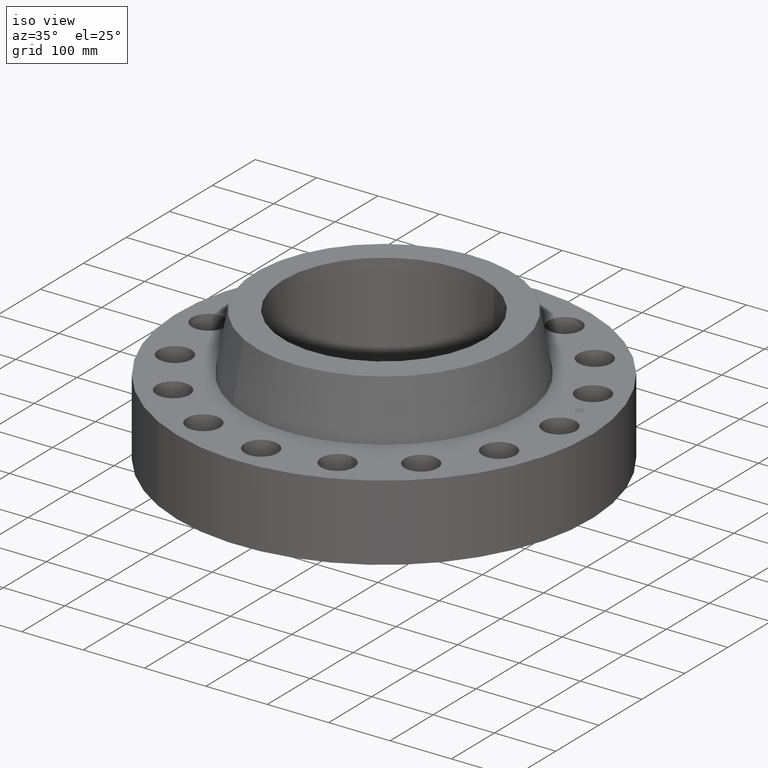
[diagram: clean part render]
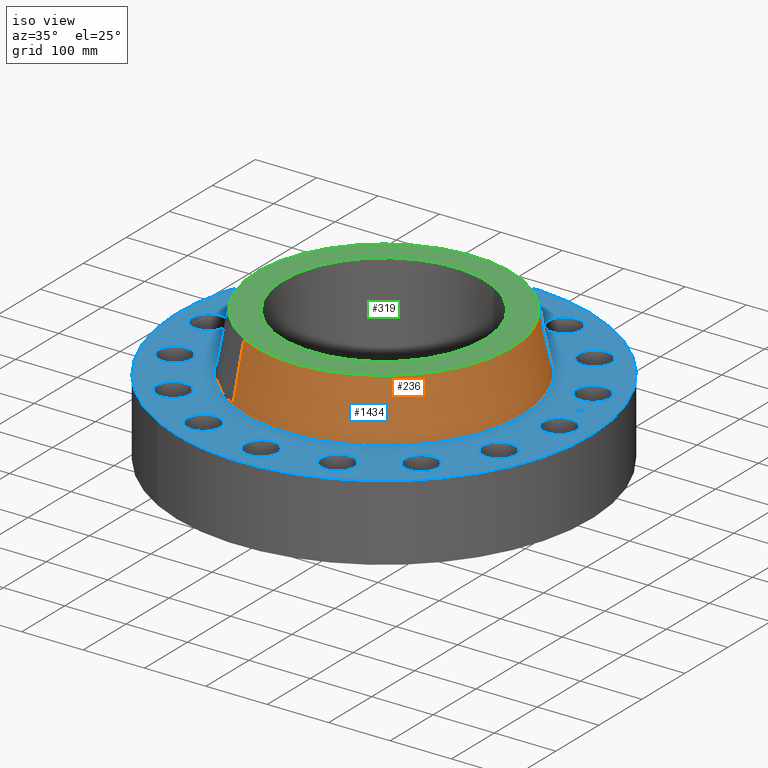
[diagram: same view with three faces highlighted in distinct colors, each labeled with its STEP entity id]
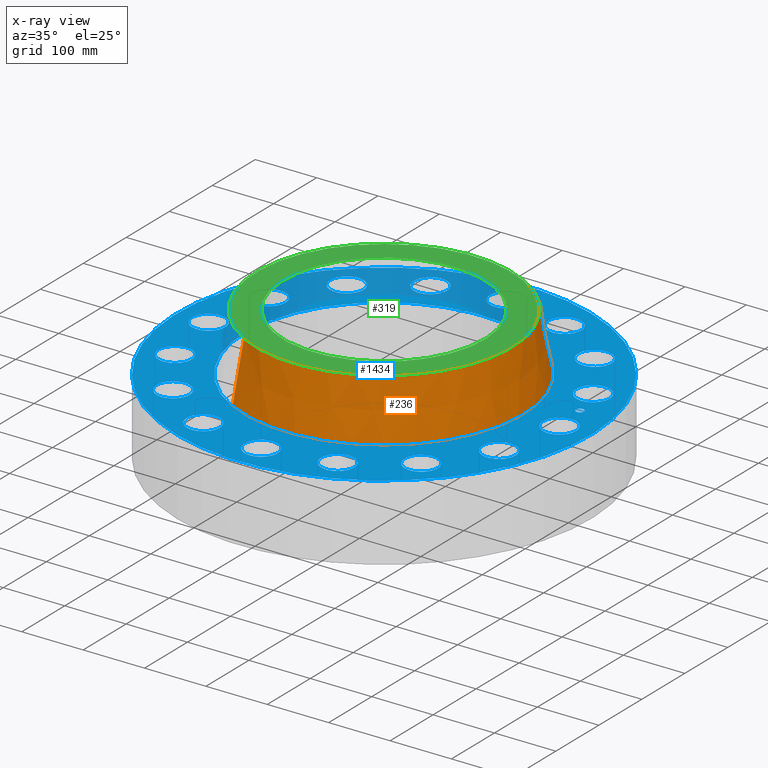
[diagram: x-ray of the same camera — body ghosted, the three highlighted faces saturated]
A machine part, iso view with three faces highlighted in distinct colors.
The next image is the same camera in x-ray (body ghosted, the three faces saturated) — at least one of them is partly hidden behind the body in this view.
Their STEP definitions:

[orange] entity #236 — the highlighted conical surface has half-angle 10 deg.
#172=AXIS2_PLACEMENT_3D('Circle Axis2P3D',#170,#171,$) ;
#209=AXIS2_PLACEMENT_3D('Cone Axis2P3D',#206,#207,#208) ;
#220=AXIS2_PLACEMENT_3D('Circle Axis2P3D',#218,#219,$) ;
#167=CARTESIAN_POINT('Vertex',(4.25071028344,7.7808729824,4.92958110936)) ;
#170=CARTESIAN_POINT('Axis2P3D Location',(0.,0.,4.92958110936)) ;
#174=CARTESIAN_POINT('Vertex',(-4.25071028344,-7.7808729824,4.92958110936)) ;
#206=CARTESIAN_POINT('Axis2P3D Location',(0.,0.,8.57041889069)) ;
#211=CARTESIAN_POINT('Line Origine',(4.09681997524,7.49917866274,6.75000000003)) ;
#215=CARTESIAN_POINT('Vertex',(3.94292966703,7.21748434307,8.57041889069)) ;
#218=CARTESIAN_POINT('Axis2P3D Location',(0.,0.,8.57041889069)) ;
#222=CARTESIAN_POINT('Vertex',(-3.94292966703,-7.21748434307,8.57041889069)) ;
#225=CARTESIAN_POINT('Line Origine',(-4.09681997524,-7.49917866274,6.75000000003)) ;
#171=DIRECTION('Axis2P3D Direction',(0.,0.,-0.0393700787402)) ;
#207=DIRECTION('Axis2P3D Direction',(0.,0.,-0.0393700787402)) ;
#208=DIRECTION('Axis2P3D XDirection',(-0.0188750212049,-0.0345504945626,0.)) ;
#212=DIRECTION('Vector Direction',(0.00327761303565,0.00599963041829,-0.03877195878)) ;
#219=DIRECTION('Axis2P3D Direction',(0.,0.,-0.0393700787402)) ;
#226=DIRECTION('Vector Direction',(-0.00327761303565,-0.00599963041829,-0.03877195878)) ;
#213=VECTOR('Line Direction',#212,0.0393700787402) ;
#227=VECTOR('Line Direction',#226,0.0393700787402) ;
#231=ORIENTED_EDGE('',*,*,#176,.F.) ;
#232=ORIENTED_EDGE('',*,*,#217,.T.) ;
#233=ORIENTED_EDGE('',*,*,#224,.T.) ;
#234=ORIENTED_EDGE('',*,*,#229,.F.) ;
#236=ADVANCED_FACE('PartBody',(#235),#210,.T.) ;
#173=CIRCLE('generated circle',#172,8.86625751273) ;
#221=CIRCLE('generated circle',#220,8.22427957949) ;
#210=CONICAL_SURFACE('Cone',#209,8.22427957949,0.174532925199) ;
#176=EDGE_CURVE('',#168,#175,#173,.T.) ;
#217=EDGE_CURVE('',#168,#216,#214,.F.) ;
#224=EDGE_CURVE('',#216,#223,#221,.T.) ;
#229=EDGE_CURVE('',#175,#223,#228,.F.) ;
#230=EDGE_LOOP('',(#231,#232,#233,#234)) ;
#235=FACE_OUTER_BOUND('',#230,.T.) ;
#214=LINE('Line',#211,#213) ;
#228=LINE('Line',#225,#227) ;
#168=VERTEX_POINT('',#167) ;
#175=VERTEX_POINT('',#174) ;
#216=VERTEX_POINT('',#215) ;
#223=VERTEX_POINT('',#222) ;

[blue] entity #1434 — the highlighted planar face has unit normal (0, 0, -1).
#65=AXIS2_PLACEMENT_3D('Circle Axis2P3D',#63,#64,$) ;
#82=AXIS2_PLACEMENT_3D('Circle Axis2P3D',#80,#81,$) ;
#115=AXIS2_PLACEMENT_3D('Circle Axis2P3D',#113,#114,$) ;
#139=AXIS2_PLACEMENT_3D('Circle Axis2P3D',#137,#138,$) ;
#156=AXIS2_PLACEMENT_3D('Circle Axis2P3D',#154,#155,$) ;
#191=AXIS2_PLACEMENT_3D('Circle Axis2P3D',#189,#190,$) ;
#715=AXIS2_PLACEMENT_3D('Circle Axis2P3D',#713,#714,$) ;
#727=AXIS2_PLACEMENT_3D('Circle Axis2P3D',#725,#726,$) ;
#758=AXIS2_PLACEMENT_3D('Circle Axis2P3D',#756,#757,$) ;
#770=AXIS2_PLACEMENT_3D('Circle Axis2P3D',#768,#769,$) ;
#801=AXIS2_PLACEMENT_3D('Circle Axis2P3D',#799,#800,$) ;
#813=AXIS2_PLACEMENT_3D('Circle Axis2P3D',#811,#812,$) ;
#844=AXIS2_PLACEMENT_3D('Circle Axis2P3D',#842,#843,$) ;
#856=AXIS2_PLACEMENT_3D('Circle Axis2P3D',#854,#855,$) ;
#887=AXIS2_PLACEMENT_3D('Circle Axis2P3D',#885,#886,$) ;
#899=AXIS2_PLACEMENT_3D('Circle Axis2P3D',#897,#898,$) ;
#930=AXIS2_PLACEMENT_3D('Circle Axis2P3D',#928,#929,$) ;
#942=AXIS2_PLACEMENT_3D('Circle Axis2P3D',#940,#941,$) ;
#973=AXIS2_PLACEMENT_3D('Circle Axis2P3D',#971,#972,$) ;
#985=AXIS2_PLACEMENT_3D('Circle Axis2P3D',#983,#984,$) ;
#1016=AXIS2_PLACEMENT_3D('Circle Axis2P3D',#1014,#1015,$) ;
#1028=AXIS2_PLACEMENT_3D('Circle Axis2P3D',#1026,#1027,$) ;
#1059=AXIS2_PLACEMENT_3D('Circle Axis2P3D',#1057,#1058,$) ;
#1071=AXIS2_PLACEMENT_3D('Circle Axis2P3D',#1069,#1070,$) ;
#1102=AXIS2_PLACEMENT_3D('Circle Axis2P3D',#1100,#1101,$) ;
#1114=AXIS2_PLACEMENT_3D('Circle Axis2P3D',#1112,#1113,$) ;
#1145=AXIS2_PLACEMENT_3D('Circle Axis2P3D',#1143,#1144,$) ;
#1157=AXIS2_PLACEMENT_3D('Circle Axis2P3D',#1155,#1156,$) ;
#1188=AXIS2_PLACEMENT_3D('Circle Axis2P3D',#1186,#1187,$) ;
#1200=AXIS2_PLACEMENT_3D('Circle Axis2P3D',#1198,#1199,$) ;
#1231=AXIS2_PLACEMENT_3D('Circle Axis2P3D',#1229,#1230,$) ;
#1243=AXIS2_PLACEMENT_3D('Circle Axis2P3D',#1241,#1242,$) ;
#1274=AXIS2_PLACEMENT_3D('Circle Axis2P3D',#1272,#1273,$) ;
#1286=AXIS2_PLACEMENT_3D('Circle Axis2P3D',#1284,#1285,$) ;
#1317=AXIS2_PLACEMENT_3D('Circle Axis2P3D',#1315,#1316,$) ;
#1329=AXIS2_PLACEMENT_3D('Circle Axis2P3D',#1327,#1328,$) ;
#1342=AXIS2_PLACEMENT_3D('Plane Axis2P3D',#1339,#1340,#1341) ;
#1418=AXIS2_PLACEMENT_3D('Circle Axis2P3D',#1416,#1417,$) ;
#1427=AXIS2_PLACEMENT_3D('Circle Axis2P3D',#1425,#1426,$) ;
#46=CARTESIAN_POINT('Vertex',(10.3197624844,0.508191070922,4.88000000002)) ;
#60=CARTESIAN_POINT('Vertex',(12.1802375157,-0.508191070922,4.88000000002)) ;
#63=CARTESIAN_POINT('Axis2P3D Location',(11.25,0.,4.88000000002)) ;
#80=CARTESIAN_POINT('Axis2P3D Location',(11.25,0.,4.88000000002)) ;
#110=CARTESIAN_POINT('Vertex',(-6.35238838653,-11.6279689451,4.88000000002)) ;
#113=CARTESIAN_POINT('Axis2P3D Location',(0.,0.,4.88000000002)) ;
#117=CARTESIAN_POINT('Vertex',(6.35238838653,11.6279689451,4.88000000002)) ;
#137=CARTESIAN_POINT('Axis2P3D Location',(0.,0.,4.88000000002)) ;
#154=CARTESIAN_POINT('Axis2P3D Location',(0.,0.,4.88000000002)) ;
#158=CARTESIAN_POINT('Vertex',(4.27903880269,7.83272798905,4.88000000002)) ;
#160=CARTESIAN_POINT('Vertex',(-4.27903880269,-7.83272798905,4.88000000002)) ;
#189=CARTESIAN_POINT('Axis2P3D Location',(0.,0.,4.88000000002)) ;
#703=CARTESIAN_POINT('Vertex',(-9.72869364307,3.47969479971,4.88000000002)) ;
#710=CARTESIAN_POINT('Vertex',(-11.0585958385,5.13068242854,4.88000000002)) ;
#713=CARTESIAN_POINT('Axis2P3D Location',(-10.3936447408,4.30518861412,4.88000000002)) ;
#725=CARTESIAN_POINT('Axis2P3D Location',(-10.3936447408,4.30518861412,4.88000000002)) ;
#746=CARTESIAN_POINT('Vertex',(7.65651938537,-6.93782868059,4.88000000002)) ;
#753=CARTESIAN_POINT('Vertex',(8.25338319139,-8.97207389617,4.88000000002)) ;
#756=CARTESIAN_POINT('Axis2P3D Location',(7.95495128838,-7.95495128838,4.88000000002)) ;
#768=CARTESIAN_POINT('Axis2P3D Location',(7.95495128838,-7.95495128838,4.88000000002)) ;
#789=CARTESIAN_POINT('Vertex',(-7.65651938537,6.93782868059,4.88000000002)) ;
#796=CARTESIAN_POINT('Vertex',(-8.25338319139,8.97207389617,4.88000000002)) ;
#799=CARTESIAN_POINT('Axis2P3D Location',(-7.95495128838,7.95495128838,4.88000000002)) ;
#811=CARTESIAN_POINT('Axis2P3D Location',(-7.95495128838,7.95495128838,4.88000000002)) ;
#832=CARTESIAN_POINT('Vertex',(4.41870945777,-9.33974103643,4.88000000002)) ;
#839=CARTESIAN_POINT('Vertex',(4.19166777048,-11.4475484452,4.88000000002)) ;
#842=CARTESIAN_POINT('Axis2P3D Location',(4.30518861412,-10.3936447408,4.88000000002)) ;
#854=CARTESIAN_POINT('Axis2P3D Location',(4.30518861412,-10.3936447408,4.88000000002)) ;
#875=CARTESIAN_POINT('Vertex',(-4.41870945777,9.33974103643,4.88000000002)) ;
#882=CARTESIAN_POINT('Vertex',(-4.19166777048,11.4475484452,4.88000000002)) ;
#885=CARTESIAN_POINT('Axis2P3D Location',(-4.30518861412,10.3936447408,4.88000000002)) ;
#897=CARTESIAN_POINT('Axis2P3D Location',(-4.30518861412,10.3936447408,4.88000000002)) ;
#918=CARTESIAN_POINT('Vertex',(0.508191070922,-10.3197624844,4.88000000002)) ;
#925=CARTESIAN_POINT('Vertex',(-0.508191070922,-12.1802375157,4.88000000002)) ;
#928=CARTESIAN_POINT('Axis2P3D Location',(-1.54906605189E-015,-11.25,4.88000000002)) ;
#940=CARTESIAN_POINT('Axis2P3D Location',(-1.54906605189E-015,-11.25,4.88000000002)) ;
#961=CARTESIAN_POINT('Vertex',(-0.508191070922,10.3197624844,4.88000000002)) ;
#968=CARTESIAN_POINT('Vertex',(0.508191070922,12.1802375157,4.88000000002)) ;
#971=CARTESIAN_POINT('Axis2P3D Location',(-2.06659147357E-015,11.25,4.88000000002)) ;
#983=CARTESIAN_POINT('Axis2P3D Location',(-2.06659147357E-015,11.25,4.88000000002)) ;
#1004=CARTESIAN_POINT('Vertex',(-3.47969479971,-9.72869364307,4.88000000002)) ;
#1011=CARTESIAN_POINT('Vertex',(-5.13068242854,-11.0585958385,4.88000000002)) ;
#1014=CARTESIAN_POINT('Axis2P3D Location',(-4.30518861412,-10.3936447408,4.88000000002)) ;
#1026=CARTESIAN_POINT('Axis2P3D Location',(-4.30518861412,-10.3936447408,4.88000000002)) ;
#1047=CARTESIAN_POINT('Vertex',(3.47969479971,9.72869364307,4.88000000002)) ;
#1054=CARTESIAN_POINT('Vertex',(5.13068242854,11.0585958385,4.88000000002)) ;
#1057=CARTESIAN_POINT('Axis2P3D Location',(4.30518861412,10.3936447408,4.88000000002)) ;
#1069=CARTESIAN_POINT('Axis2P3D Location',(4.30518861412,10.3936447408,4.88000000002)) ;
#1090=CARTESIAN_POINT('Vertex',(-6.93782868059,-7.65651938537,4.88000000002)) ;
#1097=CARTESIAN_POINT('Vertex',(-8.97207389617,-8.25338319139,4.88000000002)) ;
#1100=CARTESIAN_POINT('Axis2P3D Location',(-7.95495128838,-7.95495128838,4.88000000002)) ;
#1112=CARTESIAN_POINT('Axis2P3D Location',(-7.95495128838,-7.95495128838,4.88000000002)) ;
#1133=CARTESIAN_POINT('Vertex',(6.93782868059,7.65651938537,4.88000000002)) ;
#1140=CARTESIAN_POINT('Vertex',(8.97207389617,8.25338319139,4.88000000002)) ;
#1143=CARTESIAN_POINT('Axis2P3D Location',(7.95495128838,7.95495128838,4.88000000002)) ;
#1155=CARTESIAN_POINT('Axis2P3D Location',(7.95495128838,7.95495128838,4.88000000002)) ;
#1176=CARTESIAN_POINT('Vertex',(-9.33974103643,-4.41870945777,4.88000000002)) ;
#1183=CARTESIAN_POINT('Vertex',(-11.4475484452,-4.19166777048,4.88000000002)) ;
#1186=CARTESIAN_POINT('Axis2P3D Location',(-10.3936447408,-4.30518861412,4.88000000002)) ;
#1198=CARTESIAN_POINT('Axis2P3D Location',(-10.3936447408,-4.30518861412,4.88000000002)) ;
#1219=CARTESIAN_POINT('Vertex',(9.33974103643,4.41870945777,4.88000000002)) ;
#1226=CARTESIAN_POINT('Vertex',(11.4475484452,4.19166777048,4.88000000002)) ;
#1229=CARTESIAN_POINT('Axis2P3D Location',(10.3936447408,4.30518861412,4.88000000002)) ;
#1241=CARTESIAN_POINT('Axis2P3D Location',(10.3936447408,4.30518861412,4.88000000002)) ;
#1262=CARTESIAN_POINT('Vertex',(-10.3197624844,-0.508191070922,4.88000000002)) ;
#1269=CARTESIAN_POINT('Vertex',(-12.1802375157,0.508191070922,4.88000000002)) ;
#1272=CARTESIAN_POINT('Axis2P3D Location',(-11.25,-1.37772764905E-015,4.88000000002)) ;
#1284=CARTESIAN_POINT('Axis2P3D Location',(-11.25,-1.37772764905E-015,4.88000000002)) ;
#1305=CARTESIAN_POINT('Vertex',(9.72869364307,-3.47969479971,4.88000000002)) ;
#1312=CARTESIAN_POINT('Vertex',(11.0585958385,-5.13068242854,4.88000000002)) ;
#1315=CARTESIAN_POINT('Axis2P3D Location',(10.3936447408,-4.30518861412,4.88000000002)) ;
#1327=CARTESIAN_POINT('Axis2P3D Location',(10.3936447408,-4.30518861412,4.88000000002)) ;
#1339=CARTESIAN_POINT('Axis2P3D Location',(0.,13.2500000001,4.88000000002)) ;
#1416=CARTESIAN_POINT('Axis2P3D Location',(11.0338344046,2.19476612269,4.88000000002)) ;
#1420=CARTESIAN_POINT('Vertex',(10.9855495499,2.43751047959,4.88000000002)) ;
#1422=CARTESIAN_POINT('Vertex',(11.0821192593,1.95202176579,4.88000000002)) ;
#1425=CARTESIAN_POINT('Axis2P3D Location',(11.0338344046,2.19476612269,4.88000000002)) ;
#64=DIRECTION('Axis2P3D Direction',(0.,-0.,-0.0393700787402)) ;
#81=DIRECTION('Axis2P3D Direction',(0.,-0.,-0.0393700787402)) ;
#114=DIRECTION('Axis2P3D Direction',(0.,0.,-0.0393700787402)) ;
#138=DIRECTION('Axis2P3D Direction',(0.,0.,-0.0393700787402)) ;
#155=DIRECTION('Axis2P3D Direction',(0.,0.,-0.0393700787402)) ;
#190=DIRECTION('Axis2P3D Direction',(0.,0.,-0.0393700787402)) ;
#714=DIRECTION('Axis2P3D Direction',(0.,0.,-0.0393700787402)) ;
#726=DIRECTION('Axis2P3D Direction',(0.,0.,-0.0393700787402)) ;
#757=DIRECTION('Axis2P3D Direction',(0.,-0.,-0.0393700787402)) ;
#769=DIRECTION('Axis2P3D Direction',(0.,-0.,-0.0393700787402)) ;
#800=DIRECTION('Axis2P3D Direction',(0.,0.,-0.0393700787402)) ;
#812=DIRECTION('Axis2P3D Direction',(0.,0.,-0.0393700787402)) ;
#843=DIRECTION('Axis2P3D Direction',(0.,-0.,-0.0393700787402)) ;
#855=DIRECTION('Axis2P3D Direction',(0.,-0.,-0.0393700787402)) ;
#886=DIRECTION('Axis2P3D Direction',(0.,0.,-0.0393700787402)) ;
#898=DIRECTION('Axis2P3D Direction',(0.,0.,-0.0393700787402)) ;
#929=DIRECTION('Axis2P3D Direction',(0.,-0.,-0.0393700787402)) ;
#941=DIRECTION('Axis2P3D Direction',(0.,-0.,-0.0393700787402)) ;
#972=DIRECTION('Axis2P3D Direction',(0.,0.,-0.0393700787402)) ;
#984=DIRECTION('Axis2P3D Direction',(0.,0.,-0.0393700787402)) ;
#1015=DIRECTION('Axis2P3D Direction',(-0.,0.,-0.0393700787402)) ;
#1027=DIRECTION('Axis2P3D Direction',(-0.,0.,-0.0393700787402)) ;
#1058=DIRECTION('Axis2P3D Direction',(0.,0.,-0.0393700787402)) ;
#1070=DIRECTION('Axis2P3D Direction',(0.,0.,-0.0393700787402)) ;
#1101=DIRECTION('Axis2P3D Direction',(-0.,0.,-0.0393700787402)) ;
#1113=DIRECTION('Axis2P3D Direction',(-0.,0.,-0.0393700787402)) ;
#1144=DIRECTION('Axis2P3D Direction',(0.,0.,-0.0393700787402)) ;
#1156=DIRECTION('Axis2P3D Direction',(0.,0.,-0.0393700787402)) ;
#1187=DIRECTION('Axis2P3D Direction',(-0.,0.,-0.0393700787402)) ;
#1199=DIRECTION('Axis2P3D Direction',(-0.,0.,-0.0393700787402)) ;
#1230=DIRECTION('Axis2P3D Direction',(0.,0.,-0.0393700787402)) ;
#1242=DIRECTION('Axis2P3D Direction',(0.,0.,-0.0393700787402)) ;
#1273=DIRECTION('Axis2P3D Direction',(-0.,0.,-0.0393700787402)) ;
#1285=DIRECTION('Axis2P3D Direction',(-0.,0.,-0.0393700787402)) ;
#1316=DIRECTION('Axis2P3D Direction',(0.,-0.,-0.0393700787402)) ;
#1328=DIRECTION('Axis2P3D Direction',(0.,-0.,-0.0393700787402)) ;
#1340=DIRECTION('Axis2P3D Direction',(0.,0.,-0.0393700787402)) ;
#1341=DIRECTION('Axis2P3D XDirection',(0.0393700787402,0.,0.)) ;
#1417=DIRECTION('Axis2P3D Direction',(0.,0.,-0.0393700787402)) ;
#1426=DIRECTION('Axis2P3D Direction',(0.,0.,-0.0393700787402)) ;
#1345=ORIENTED_EDGE('',*,*,#141,.F.) ;
#1346=ORIENTED_EDGE('',*,*,#119,.F.) ;
#1349=ORIENTED_EDGE('',*,*,#67,.T.) ;
#1350=ORIENTED_EDGE('',*,*,#84,.T.) ;
#1353=ORIENTED_EDGE('',*,*,#193,.T.) ;
#1354=ORIENTED_EDGE('',*,*,#162,.T.) ;
#1357=ORIENTED_EDGE('',*,*,#1331,.T.) ;
#1358=ORIENTED_EDGE('',*,*,#1319,.T.) ;
#1361=ORIENTED_EDGE('',*,*,#772,.T.) ;
#1362=ORIENTED_EDGE('',*,*,#760,.T.) ;
#1365=ORIENTED_EDGE('',*,*,#858,.T.) ;
#1366=ORIENTED_EDGE('',*,*,#846,.T.) ;
#1369=ORIENTED_EDGE('',*,*,#944,.T.) ;
#1370=ORIENTED_EDGE('',*,*,#932,.T.) ;
#1373=ORIENTED_EDGE('',*,*,#1030,.T.) ;
#1374=ORIENTED_EDGE('',*,*,#1018,.T.) ;
#1377=ORIENTED_EDGE('',*,*,#1116,.T.) ;
#1378=ORIENTED_EDGE('',*,*,#1104,.T.) ;
#1381=ORIENTED_EDGE('',*,*,#1202,.T.) ;
#1382=ORIENTED_EDGE('',*,*,#1190,.T.) ;
#1385=ORIENTED_EDGE('',*,*,#1288,.T.) ;
#1386=ORIENTED_EDGE('',*,*,#1276,.T.) ;
#1389=ORIENTED_EDGE('',*,*,#729,.T.) ;
#1390=ORIENTED_EDGE('',*,*,#717,.T.) ;
#1393=ORIENTED_EDGE('',*,*,#815,.T.) ;
#1394=ORIENTED_EDGE('',*,*,#803,.T.) ;
#1397=ORIENTED_EDGE('',*,*,#901,.T.) ;
#1398=ORIENTED_EDGE('',*,*,#889,.T.) ;
#1401=ORIENTED_EDGE('',*,*,#987,.T.) ;
#1402=ORIENTED_EDGE('',*,*,#975,.T.) ;
#1405=ORIENTED_EDGE('',*,*,#1073,.T.) ;
#1406=ORIENTED_EDGE('',*,*,#1061,.T.) ;
#1409=ORIENTED_EDGE('',*,*,#1159,.T.) ;
#1410=ORIENTED_EDGE('',*,*,#1147,.T.) ;
#1413=ORIENTED_EDGE('',*,*,#1245,.T.) ;
#1414=ORIENTED_EDGE('',*,*,#1233,.T.) ;
#1431=ORIENTED_EDGE('',*,*,#1424,.T.) ;
#1432=ORIENTED_EDGE('',*,*,#1429,.T.) ;
#1351=FACE_BOUND('',#1348,.T.) ;
#1355=FACE_BOUND('',#1352,.T.) ;
#1359=FACE_BOUND('',#1356,.T.) ;
#1363=FACE_BOUND('',#1360,.T.) ;
#1367=FACE_BOUND('',#1364,.T.) ;
#1371=FACE_BOUND('',#1368,.T.) ;
#1375=FACE_BOUND('',#1372,.T.) ;
#1379=FACE_BOUND('',#1376,.T.) ;
#1383=FACE_BOUND('',#1380,.T.) ;
#1387=FACE_BOUND('',#1384,.T.) ;
#1391=FACE_BOUND('',#1388,.T.) ;
#1395=FACE_BOUND('',#1392,.T.) ;
#1399=FACE_BOUND('',#1396,.T.) ;
#1403=FACE_BOUND('',#1400,.T.) ;
#1407=FACE_BOUND('',#1404,.T.) ;
#1411=FACE_BOUND('',#1408,.T.) ;
#1415=FACE_BOUND('',#1412,.T.) ;
#1433=FACE_BOUND('',#1430,.T.) ;
#1434=ADVANCED_FACE('PartBody',(#1347,#1351,#1355,#1359,#1363,#1367,#1371,#1375,#1379,#1383,#1387,#1391,#1395,#1399,#1403,#1407,#1411,#1415,#1433),#1343,.F.) ;
#66=CIRCLE('generated circle',#65,1.06) ;
#83=CIRCLE('generated circle',#82,1.06) ;
#116=CIRCLE('generated circle',#115,13.2500000001) ;
#140=CIRCLE('generated circle',#139,13.2500000001) ;
#157=CIRCLE('generated circle',#156,8.92534597791) ;
#192=CIRCLE('generated circle',#191,8.92534597791) ;
#716=CIRCLE('generated circle',#715,1.06) ;
#728=CIRCLE('generated circle',#727,1.06) ;
#759=CIRCLE('generated circle',#758,1.06) ;
#771=CIRCLE('generated circle',#770,1.06) ;
#802=CIRCLE('generated circle',#801,1.06) ;
#814=CIRCLE('generated circle',#813,1.06) ;
#845=CIRCLE('generated circle',#844,1.06) ;
#857=CIRCLE('generated circle',#856,1.06) ;
#888=CIRCLE('generated circle',#887,1.06) ;
#900=CIRCLE('generated circle',#899,1.06) ;
#931=CIRCLE('generated circle',#930,1.06) ;
#943=CIRCLE('generated circle',#942,1.06) ;
#974=CIRCLE('generated circle',#973,1.06) ;
#986=CIRCLE('generated circle',#985,1.06) ;
#1017=CIRCLE('generated circle',#1016,1.06) ;
#1029=CIRCLE('generated circle',#1028,1.06) ;
#1060=CIRCLE('generated circle',#1059,1.06) ;
#1072=CIRCLE('generated circle',#1071,1.06) ;
#1103=CIRCLE('generated circle',#1102,1.06) ;
#1115=CIRCLE('generated circle',#1114,1.06) ;
#1146=CIRCLE('generated circle',#1145,1.06) ;
#1158=CIRCLE('generated circle',#1157,1.06) ;
#1189=CIRCLE('generated circle',#1188,1.06) ;
#1201=CIRCLE('generated circle',#1200,1.06) ;
#1232=CIRCLE('generated circle',#1231,1.06) ;
#1244=CIRCLE('generated circle',#1243,1.06) ;
#1275=CIRCLE('generated circle',#1274,1.06) ;
#1287=CIRCLE('generated circle',#1286,1.06) ;
#1318=CIRCLE('generated circle',#1317,1.06) ;
#1330=CIRCLE('generated circle',#1329,1.06) ;
#1419=CIRCLE('generated circle',#1418,0.247500000001) ;
#1428=CIRCLE('generated circle',#1427,0.247500000001) ;
#67=EDGE_CURVE('',#47,#61,#66,.T.) ;
#84=EDGE_CURVE('',#61,#47,#83,.T.) ;
#119=EDGE_CURVE('',#111,#118,#116,.T.) ;
#141=EDGE_CURVE('',#118,#111,#140,.T.) ;
#162=EDGE_CURVE('',#159,#161,#157,.T.) ;
#193=EDGE_CURVE('',#161,#159,#192,.T.) ;
#717=EDGE_CURVE('',#704,#711,#716,.T.) ;
#729=EDGE_CURVE('',#711,#704,#728,.T.) ;
#760=EDGE_CURVE('',#747,#754,#759,.T.) ;
#772=EDGE_CURVE('',#754,#747,#771,.T.) ;
#803=EDGE_CURVE('',#790,#797,#802,.T.) ;
#815=EDGE_CURVE('',#797,#790,#814,.T.) ;
#846=EDGE_CURVE('',#833,#840,#845,.T.) ;
#858=EDGE_CURVE('',#840,#833,#857,.T.) ;
#889=EDGE_CURVE('',#876,#883,#888,.T.) ;
#901=EDGE_CURVE('',#883,#876,#900,.T.) ;
#932=EDGE_CURVE('',#919,#926,#931,.T.) ;
#944=EDGE_CURVE('',#926,#919,#943,.T.) ;
#975=EDGE_CURVE('',#962,#969,#974,.T.) ;
#987=EDGE_CURVE('',#969,#962,#986,.T.) ;
#1018=EDGE_CURVE('',#1005,#1012,#1017,.T.) ;
#1030=EDGE_CURVE('',#1012,#1005,#1029,.T.) ;
#1061=EDGE_CURVE('',#1048,#1055,#1060,.T.) ;
#1073=EDGE_CURVE('',#1055,#1048,#1072,.T.) ;
#1104=EDGE_CURVE('',#1091,#1098,#1103,.T.) ;
#1116=EDGE_CURVE('',#1098,#1091,#1115,.T.) ;
#1147=EDGE_CURVE('',#1134,#1141,#1146,.T.) ;
#1159=EDGE_CURVE('',#1141,#1134,#1158,.T.) ;
#1190=EDGE_CURVE('',#1177,#1184,#1189,.T.) ;
#1202=EDGE_CURVE('',#1184,#1177,#1201,.T.) ;
#1233=EDGE_CURVE('',#1220,#1227,#1232,.T.) ;
#1245=EDGE_CURVE('',#1227,#1220,#1244,.T.) ;
#1276=EDGE_CURVE('',#1263,#1270,#1275,.T.) ;
#1288=EDGE_CURVE('',#1270,#1263,#1287,.T.) ;
#1319=EDGE_CURVE('',#1306,#1313,#1318,.T.) ;
#1331=EDGE_CURVE('',#1313,#1306,#1330,.T.) ;
#1424=EDGE_CURVE('',#1421,#1423,#1419,.T.) ;
#1429=EDGE_CURVE('',#1423,#1421,#1428,.T.) ;
#1344=EDGE_LOOP('',(#1345,#1346)) ;
#1348=EDGE_LOOP('',(#1349,#1350)) ;
#1352=EDGE_LOOP('',(#1353,#1354)) ;
#1356=EDGE_LOOP('',(#1357,#1358)) ;
#1360=EDGE_LOOP('',(#1361,#1362)) ;
#1364=EDGE_LOOP('',(#1365,#1366)) ;
#1368=EDGE_LOOP('',(#1369,#1370)) ;
#1372=EDGE_LOOP('',(#1373,#1374)) ;
#1376=EDGE_LOOP('',(#1377,#1378)) ;
#1380=EDGE_LOOP('',(#1381,#1382)) ;
#1384=EDGE_LOOP('',(#1385,#1386)) ;
#1388=EDGE_LOOP('',(#1389,#1390)) ;
#1392=EDGE_LOOP('',(#1393,#1394)) ;
#1396=EDGE_LOOP('',(#1397,#1398)) ;
#1400=EDGE_LOOP('',(#1401,#1402)) ;
#1404=EDGE_LOOP('',(#1405,#1406)) ;
#1408=EDGE_LOOP('',(#1409,#1410)) ;
#1412=EDGE_LOOP('',(#1413,#1414)) ;
#1430=EDGE_LOOP('',(#1431,#1432)) ;
#1347=FACE_OUTER_BOUND('',#1344,.T.) ;
#1343=PLANE('',#1342) ;
#47=VERTEX_POINT('',#46) ;
#61=VERTEX_POINT('',#60) ;
#111=VERTEX_POINT('',#110) ;
#118=VERTEX_POINT('',#117) ;
#159=VERTEX_POINT('',#158) ;
#161=VERTEX_POINT('',#160) ;
#704=VERTEX_POINT('',#703) ;
#711=VERTEX_POINT('',#710) ;
#747=VERTEX_POINT('',#746) ;
#754=VERTEX_POINT('',#753) ;
#790=VERTEX_POINT('',#789) ;
#797=VERTEX_POINT('',#796) ;
#833=VERTEX_POINT('',#832) ;
#840=VERTEX_POINT('',#839) ;
#876=VERTEX_POINT('',#875) ;
#883=VERTEX_POINT('',#882) ;
#919=VERTEX_POINT('',#918) ;
#926=VERTEX_POINT('',#925) ;
#962=VERTEX_POINT('',#961) ;
#969=VERTEX_POINT('',#968) ;
#1005=VERTEX_POINT('',#1004) ;
#1012=VERTEX_POINT('',#1011) ;
#1048=VERTEX_POINT('',#1047) ;
#1055=VERTEX_POINT('',#1054) ;
#1091=VERTEX_POINT('',#1090) ;
#1098=VERTEX_POINT('',#1097) ;
#1134=VERTEX_POINT('',#1133) ;
#1141=VERTEX_POINT('',#1140) ;
#1177=VERTEX_POINT('',#1176) ;
#1184=VERTEX_POINT('',#1183) ;
#1220=VERTEX_POINT('',#1219) ;
#1227=VERTEX_POINT('',#1226) ;
#1263=VERTEX_POINT('',#1262) ;
#1270=VERTEX_POINT('',#1269) ;
#1306=VERTEX_POINT('',#1305) ;
#1313=VERTEX_POINT('',#1312) ;
#1421=VERTEX_POINT('',#1420) ;
#1423=VERTEX_POINT('',#1422) ;

[green] entity #319 — the highlighted planar face has unit normal (0, 0, -1).
#263=AXIS2_PLACEMENT_3D('Circle Axis2P3D',#261,#262,$) ;
#282=AXIS2_PLACEMENT_3D('Circle Axis2P3D',#280,#281,$) ;
#295=AXIS2_PLACEMENT_3D('Plane Axis2P3D',#292,#293,#294) ;
#303=AXIS2_PLACEMENT_3D('Circle Axis2P3D',#301,#302,$) ;
#312=AXIS2_PLACEMENT_3D('Circle Axis2P3D',#310,#311,$) ;
#258=CARTESIAN_POINT('Vertex',(3.91460114779,7.16562933642,8.62000000003)) ;
#261=CARTESIAN_POINT('Axis2P3D Location',(0.,0.,8.62000000003)) ;
#265=CARTESIAN_POINT('Vertex',(-3.91460114779,-7.16562933642,8.62000000003)) ;
#280=CARTESIAN_POINT('Axis2P3D Location',(0.,0.,8.62000000003)) ;
#292=CARTESIAN_POINT('Axis2P3D Location',(0.,8.16519111431,8.62000000003)) ;
#301=CARTESIAN_POINT('Axis2P3D Location',(0.,0.,8.62000000003)) ;
#305=CARTESIAN_POINT('Vertex',(-3.0970889794,-5.66918334983,8.62000000003)) ;
#307=CARTESIAN_POINT('Vertex',(3.0970889794,5.66918334983,8.62000000003)) ;
#310=CARTESIAN_POINT('Axis2P3D Location',(0.,0.,8.62000000003)) ;
#262=DIRECTION('Axis2P3D Direction',(0.,0.,-0.0393700787402)) ;
#281=DIRECTION('Axis2P3D Direction',(0.,0.,-0.0393700787402)) ;
#293=DIRECTION('Axis2P3D Direction',(0.,0.,-0.0393700787402)) ;
#294=DIRECTION('Axis2P3D XDirection',(0.0393700787402,0.,0.)) ;
#302=DIRECTION('Axis2P3D Direction',(0.,0.,-0.0393700787402)) ;
#311=DIRECTION('Axis2P3D Direction',(0.,0.,-0.0393700787402)) ;
#298=ORIENTED_EDGE('',*,*,#267,.F.) ;
#299=ORIENTED_EDGE('',*,*,#284,.F.) ;
#316=ORIENTED_EDGE('',*,*,#309,.T.) ;
#317=ORIENTED_EDGE('',*,*,#314,.T.) ;
#318=FACE_BOUND('',#315,.T.) ;
#319=ADVANCED_FACE('PartBody',(#300,#318),#296,.F.) ;
#264=CIRCLE('generated circle',#263,8.16519111431) ;
#283=CIRCLE('generated circle',#282,8.16519111431) ;
#304=CIRCLE('generated circle',#303,6.46000000003) ;
#313=CIRCLE('generated circle',#312,6.46000000003) ;
#267=EDGE_CURVE('',#259,#266,#264,.T.) ;
#284=EDGE_CURVE('',#266,#259,#283,.T.) ;
#309=EDGE_CURVE('',#306,#308,#304,.T.) ;
#314=EDGE_CURVE('',#308,#306,#313,.T.) ;
#297=EDGE_LOOP('',(#298,#299)) ;
#315=EDGE_LOOP('',(#316,#317)) ;
#300=FACE_OUTER_BOUND('',#297,.T.) ;
#296=PLANE('',#295) ;
#259=VERTEX_POINT('',#258) ;
#266=VERTEX_POINT('',#265) ;
#306=VERTEX_POINT('',#305) ;
#308=VERTEX_POINT('',#307) ;